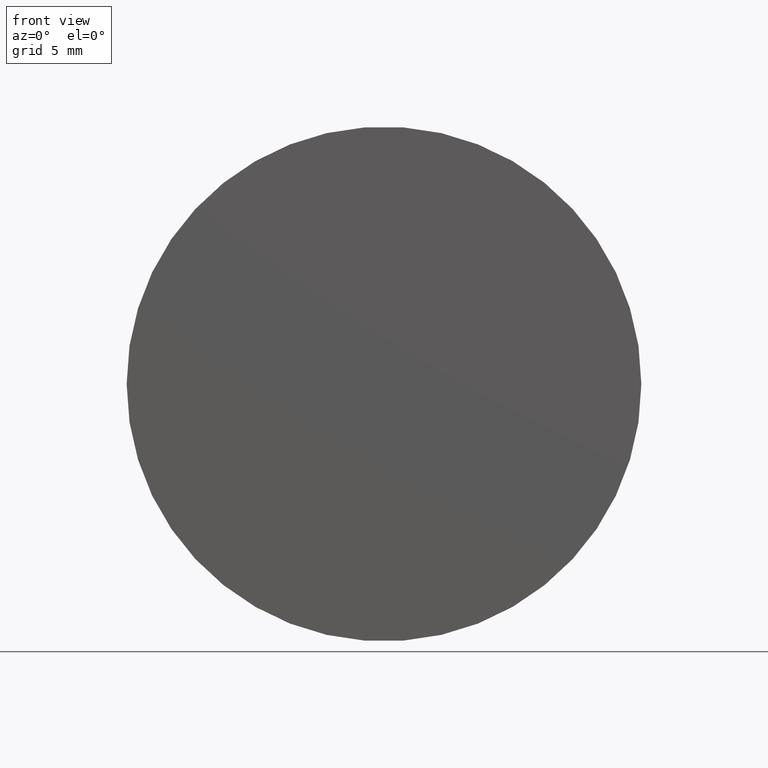
[diagram: clean part render]
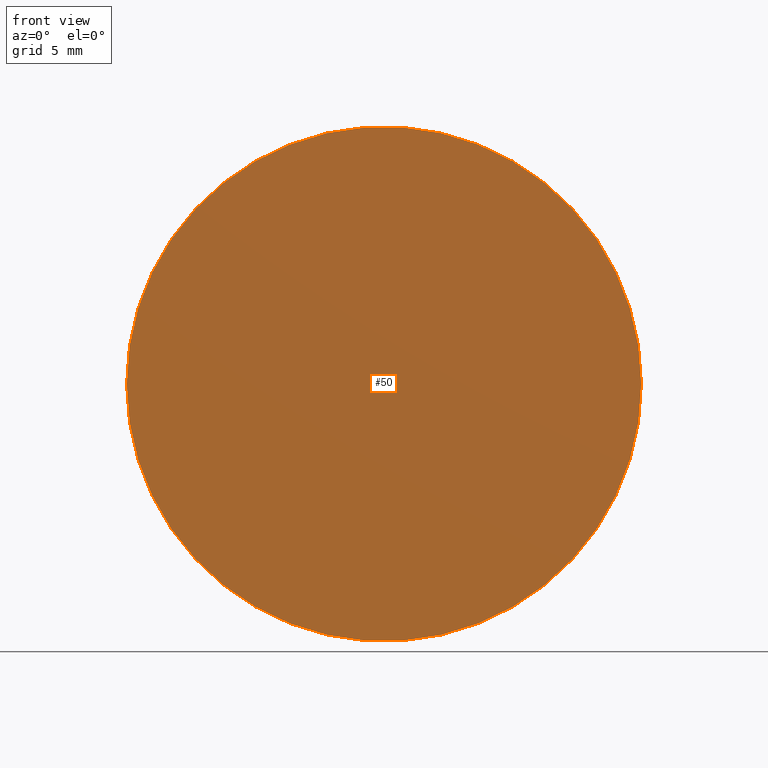
[diagram: same view with one face highlighted and labeled with its STEP entity id]
A machine part, front view. The second image highlights one B-rep face of the part: STEP entity #50.
In plain terms, the highlighted planar face has unit normal (-0, -1, 0).
Its self-contained STEP definition (entity closure, byte-faithful):
#7 = ORIENTED_EDGE ( 'NONE', *, *, #180, .F. ) ;
#10 = DIRECTION ( 'NONE',  ( 1.000000000000000000, -1.527572117329677268E-17, 0.000000000000000000 ) ) ;
#13 = EDGE_CURVE ( 'NONE', #21, #134, #86, .T. ) ;
#14 = AXIS2_PLACEMENT_3D ( 'NONE', #117, #42, #10 ) ;
#21 = VERTEX_POINT ( 'NONE', #84 ) ;
#41 = AXIS2_PLACEMENT_3D ( 'NONE', #148, #135, #90 ) ;
#42 = DIRECTION ( 'NONE',  ( -1.527572117329677268E-17, -1.000000000000000000, 0.000000000000000000 ) ) ;
#48 = AXIS2_PLACEMENT_3D ( 'NONE', #61, #88, #127 ) ;
#50 = ADVANCED_FACE ( 'NONE', ( #176 ), #196, .T. ) ;
#56 = ORIENTED_EDGE ( 'NONE', *, *, #13, .F. ) ;
#61 = CARTESIAN_POINT ( 'NONE',  ( -3.611118645726067224E-32, -1.734723475976807094E-15, 0.000000000000000000 ) ) ;
#84 = CARTESIAN_POINT ( 'NONE',  ( -15.00000000000000000, -1.505587658377355424E-15, 0.000000000000000000 ) ) ;
#86 = CIRCLE ( 'NONE', #41, 15.00000000000000000 ) ;
#88 = DIRECTION ( 'NONE',  ( 1.527572117329677268E-17, 1.000000000000000000, -0.000000000000000000 ) ) ;
#90 = DIRECTION ( 'NONE',  ( -1.000000000000000000, 1.527572117329677576E-17, 0.000000000000000000 ) ) ;
#117 = CARTESIAN_POINT ( 'NONE',  ( -1.578062970989131200E-32, -1.033053008160240630E-15, 0.000000000000000000 ) ) ;
#127 = DIRECTION ( 'NONE',  ( -1.000000000000000000, 1.527572117329677576E-17, 0.000000000000000000 ) ) ;
#134 = VERTEX_POINT ( 'NONE', #137 ) ;
#135 = DIRECTION ( 'NONE',  ( 1.527572117329677268E-17, 1.000000000000000000, -0.000000000000000000 ) ) ;
#137 = CARTESIAN_POINT ( 'NONE',  ( 15.00000000000000000, -1.963859293576258765E-15, 1.836970198721029589E-15 ) ) ;
#148 = CARTESIAN_POINT ( 'NONE',  ( -3.611118645726067224E-32, -1.734723475976807094E-15, 0.000000000000000000 ) ) ;
#176 = FACE_OUTER_BOUND ( 'NONE', #190, .T. ) ;
#180 = EDGE_CURVE ( 'NONE', #134, #21, #195, .T. ) ;
#190 = EDGE_LOOP ( 'NONE', ( #56, #7 ) ) ;
#195 = CIRCLE ( 'NONE', #48, 15.00000000000000000 ) ;
#196 = PLANE ( 'NONE',  #14 ) ;